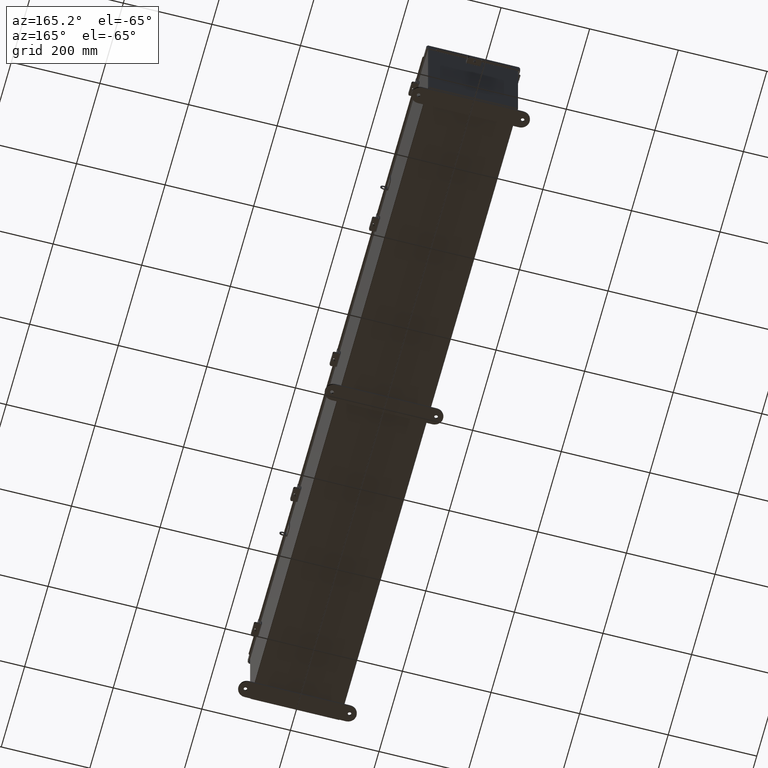
[diagram: clean part render]
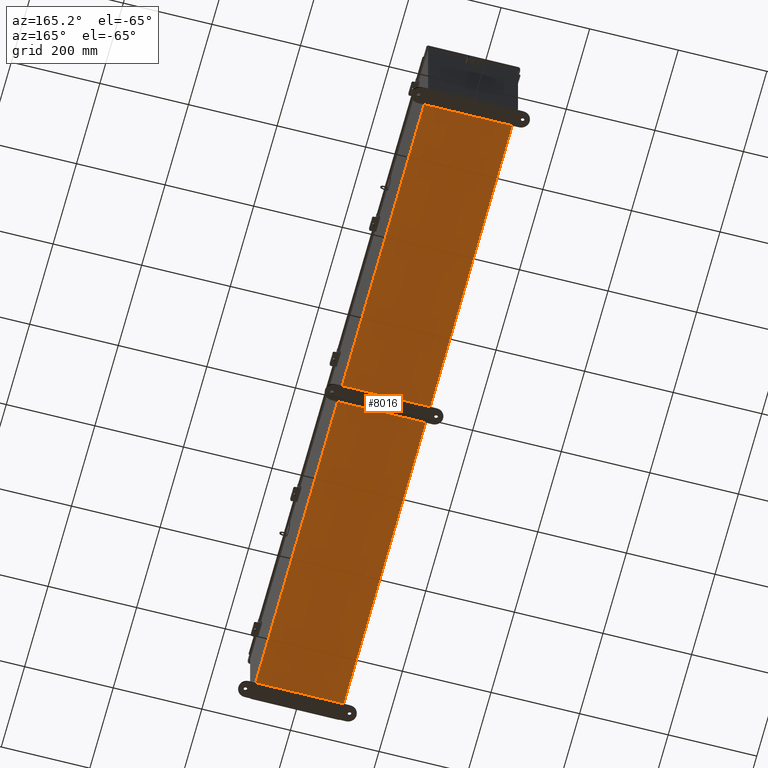
[diagram: same view with one face highlighted and labeled with its STEP entity id]
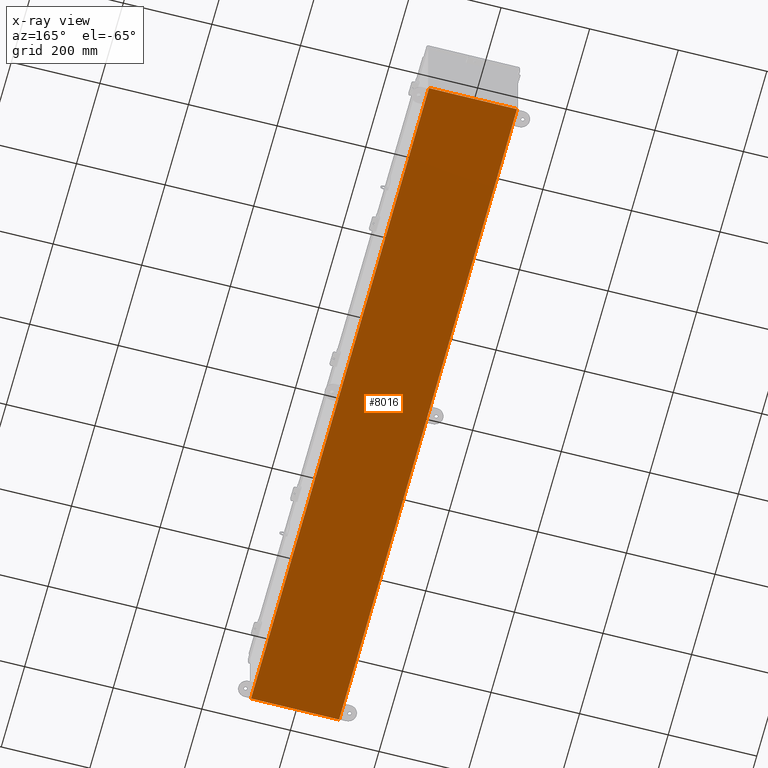
[diagram: x-ray of the same camera — body ghosted, the highlighted face saturated]
A machine part, auxiliary view. The second image highlights one B-rep face of the part: STEP entity #8016.
The next image is the same camera in x-ray: the body ghosted, the highlighted face saturated — about 0% of this face is hidden behind the body in this view.
In plain terms, the highlighted planar face has unit normal (0, 0, -1).
Its self-contained STEP definition (entity closure, byte-faithful):
#1288 = VECTOR ( 'NONE', #29262, 39.37007874015748100 ) ;
#3179 = LINE ( 'NONE', #35151, #11061 ) ;
#3611 = CARTESIAN_POINT ( 'NONE',  ( -4.000000000000000900, 29.92530000000002100, -0.07470000000000000300 ) ) ;
#5382 = EDGE_LOOP ( 'NONE', ( #11424, #36980, #28322, #6183 ) ) ;
#5555 = PLANE ( 'NONE',  #18116 ) ;
#6183 = ORIENTED_EDGE ( 'NONE', *, *, #11132, .T. ) ;
#7907 = VERTEX_POINT ( 'NONE', #18272 ) ;
#8016 = ADVANCED_FACE ( 'NONE', ( #20395 ), #5555, .T. ) ;
#9705 = LINE ( 'NONE', #10231, #14374 ) ;
#10231 = CARTESIAN_POINT ( 'NONE',  ( -3.912300000000000100, -29.92529999999996800, -0.07469999999999966900 ) ) ;
#10376 = DIRECTION ( 'NONE',  ( -1.000000000000000000, -0.0000000000000000000, -0.0000000000000000000 ) ) ;
#10779 = LINE ( 'NONE', #3611, #35321 ) ;
#11061 = VECTOR ( 'NONE', #25228, 39.37007874015748100 ) ;
#11132 = EDGE_CURVE ( 'NONE', #34914, #42606, #9705, .T. ) ;
#11424 = ORIENTED_EDGE ( 'NONE', *, *, #27844, .F. ) ;
#12631 = CARTESIAN_POINT ( 'NONE',  ( 3.912299999999999200, 29.92530000000002100, -0.07470000000000076600 ) ) ;
#14374 = VECTOR ( 'NONE', #26860, 39.37007874015748100 ) ;
#15088 = CARTESIAN_POINT ( 'NONE',  ( -3.912300000000000100, -29.92529999999996100, -0.07469999999999966900 ) ) ;
#15140 = CARTESIAN_POINT ( 'NONE',  ( 3.912299999999999200, 29.92530000000002100, -0.07470000000000076600 ) ) ;
#15636 = DIRECTION ( 'NONE',  ( 0.0000000000000000000, 0.0000000000000000000, -1.000000000000000000 ) ) ;
#18116 = AXIS2_PLACEMENT_3D ( 'NONE', #25582, #15636, #38994 ) ;
#18272 = CARTESIAN_POINT ( 'NONE',  ( 3.912299999999999200, -29.92529999999998600, -0.07470000000000000300 ) ) ;
#20395 = FACE_OUTER_BOUND ( 'NONE', #5382, .T. ) ;
#23312 = EDGE_CURVE ( 'NONE', #34914, #7907, #3179, .T. ) ;
#25228 = DIRECTION ( 'NONE',  ( 1.000000000000000000, -1.092739197465705300E-015, 0.0000000000000000000 ) ) ;
#25582 = CARTESIAN_POINT ( 'NONE',  ( 0.0000000000000000000, 0.0000000000000000000, -0.07470000000000000300 ) ) ;
#26369 = VERTEX_POINT ( 'NONE', #15140 ) ;
#26860 = DIRECTION ( 'NONE',  ( -0.0000000000000000000, 1.000000000000000000, -0.0000000000000000000 ) ) ;
#27844 = EDGE_CURVE ( 'NONE', #26369, #42606, #10779, .T. ) ;
#28322 = ORIENTED_EDGE ( 'NONE', *, *, #23312, .F. ) ;
#29262 = DIRECTION ( 'NONE',  ( -0.0000000000000000000, -1.000000000000000000, -0.0000000000000000000 ) ) ;
#34914 = VERTEX_POINT ( 'NONE', #15088 ) ;
#35151 = CARTESIAN_POINT ( 'NONE',  ( -4.000000000000000900, -29.92529999999997900, -0.07470000000000000300 ) ) ;
#35235 = CARTESIAN_POINT ( 'NONE',  ( -3.912300000000000100, 29.92530000000002100, -0.07470000000000000300 ) ) ;
#35321 = VECTOR ( 'NONE', #10376, 39.37007874015748100 ) ;
#36842 = LINE ( 'NONE', #12631, #1288 ) ;
#36980 = ORIENTED_EDGE ( 'NONE', *, *, #42833, .T. ) ;
#38994 = DIRECTION ( 'NONE',  ( -1.000000000000000000, 0.0000000000000000000, -0.0000000000000000000 ) ) ;
#42606 = VERTEX_POINT ( 'NONE', #35235 ) ;
#42833 = EDGE_CURVE ( 'NONE', #26369, #7907, #36842, .T. ) ;